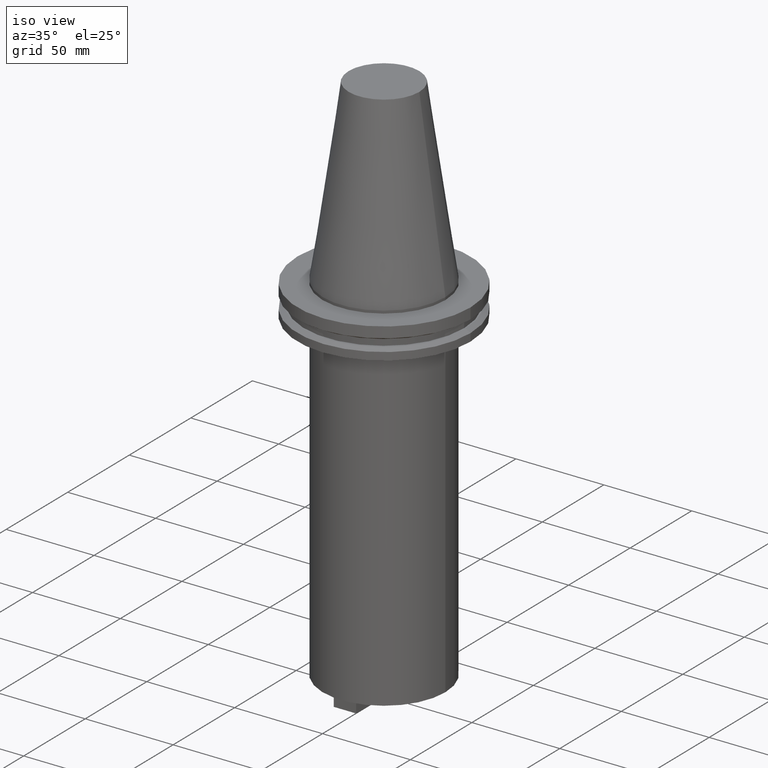
[diagram: clean part render]
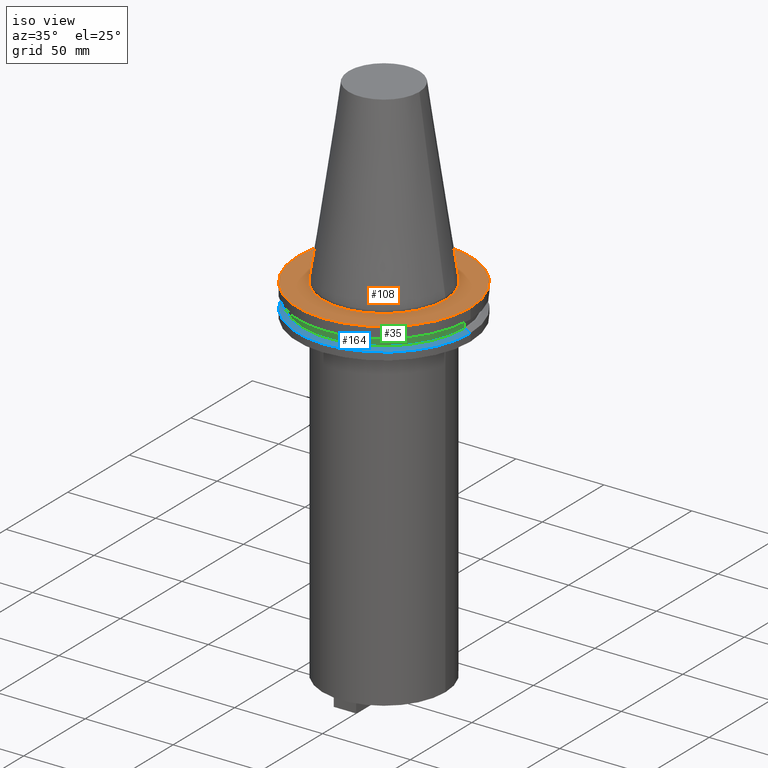
[diagram: same view with three faces highlighted in distinct colors, each labeled with its STEP entity id]
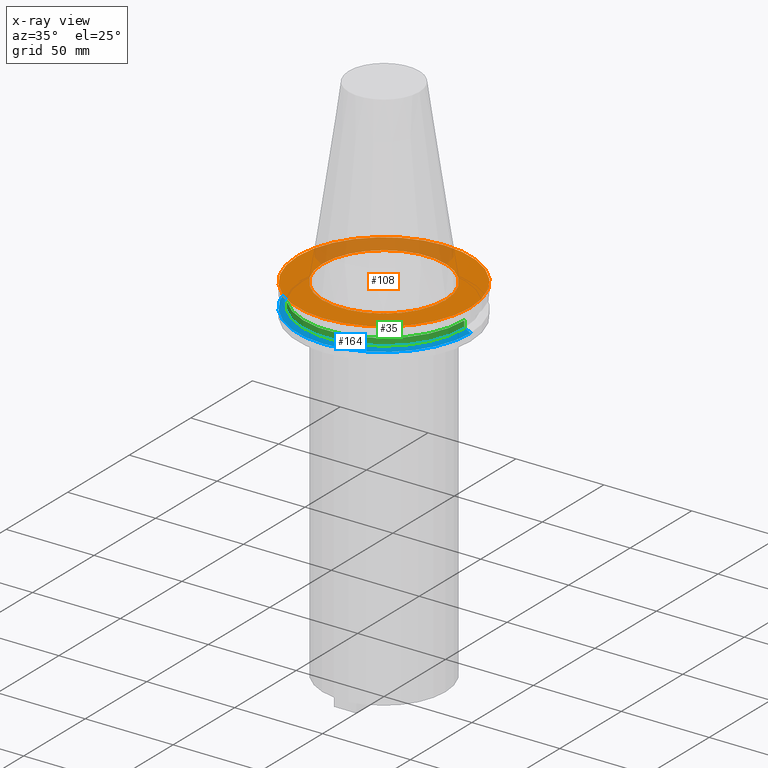
[diagram: x-ray of the same camera — body ghosted, the three highlighted faces saturated]
A machine part, iso view with three faces highlighted in distinct colors.
The next image is the same camera in x-ray (body ghosted, the three faces saturated) — at least one of them is partly hidden behind the body in this view.
Their STEP definitions:

[orange] entity #108 — the highlighted planar face has unit normal (0, 0, -1).
#16 = VERTEX_POINT ( 'NONE', #131 ) ;
#64 = DIRECTION ( 'NONE',  ( -0.000000000000000000, -0.000000000000000000, 1.000000000000000000 ) ) ;
#89 = CIRCLE ( 'NONE', #873, 49.21499999999999631 ) ;
#108 = ADVANCED_FACE ( 'NONE', ( #658, #213 ), #423, .F. ) ;
#123 = EDGE_LOOP ( 'NONE', ( #607, #599 ) ) ;
#131 = CARTESIAN_POINT ( 'NONE',  ( 49.21499999999999631, 0.000000000000000000, -1.499999999999987566 ) ) ;
#142 = CARTESIAN_POINT ( 'NONE',  ( 0.000000000000000000, 0.000000000000000000, -1.499999999999987566 ) ) ;
#143 = EDGE_CURVE ( 'NONE', #16, #890, #89, .T. ) ;
#152 = CIRCLE ( 'NONE', #202, 49.21499999999999631 ) ;
#168 = CIRCLE ( 'NONE', #689, 34.92499999999999005 ) ;
#193 = VERTEX_POINT ( 'NONE', #850 ) ;
#202 = AXIS2_PLACEMENT_3D ( 'NONE', #919, #940, #701 ) ;
#213 = FACE_OUTER_BOUND ( 'NONE', #123, .T. ) ;
#225 = DIRECTION ( 'NONE',  ( 1.000000000000000000, 0.000000000000000000, 0.000000000000000000 ) ) ;
#245 = ORIENTED_EDGE ( 'NONE', *, *, #583, .F. ) ;
#250 = EDGE_CURVE ( 'NONE', #890, #16, #152, .T. ) ;
#271 = CARTESIAN_POINT ( 'NONE',  ( 0.000000000000000000, 49.21499999999999631, -1.499999999999992895 ) ) ;
#278 = AXIS2_PLACEMENT_3D ( 'NONE', #844, #64, #225 ) ;
#299 = AXIS2_PLACEMENT_3D ( 'NONE', #271, #522, #839 ) ;
#421 = DIRECTION ( 'NONE',  ( -0.000000000000000000, -0.000000000000000000, 1.000000000000000000 ) ) ;
#423 = PLANE ( 'NONE',  #299 ) ;
#431 = CARTESIAN_POINT ( 'NONE',  ( 0.000000000000000000, 0.000000000000000000, -1.499999999999987566 ) ) ;
#522 = DIRECTION ( 'NONE',  ( 0.000000000000000000, 0.000000000000000000, -1.000000000000000000 ) ) ;
#534 = ORIENTED_EDGE ( 'NONE', *, *, #879, .F. ) ;
#549 = DIRECTION ( 'NONE',  ( -0.000000000000000000, -0.000000000000000000, 1.000000000000000000 ) ) ;
#569 = DIRECTION ( 'NONE',  ( 1.000000000000000000, 0.000000000000000000, 0.000000000000000000 ) ) ;
#583 = EDGE_CURVE ( 'NONE', #637, #193, #721, .T. ) ;
#599 = ORIENTED_EDGE ( 'NONE', *, *, #250, .T. ) ;
#605 = CARTESIAN_POINT ( 'NONE',  ( 34.92499999999999005, 0.000000000000000000, -1.499999999999987566 ) ) ;
#607 = ORIENTED_EDGE ( 'NONE', *, *, #143, .T. ) ;
#637 = VERTEX_POINT ( 'NONE', #605 ) ;
#658 = FACE_BOUND ( 'NONE', #1000, .T. ) ;
#689 = AXIS2_PLACEMENT_3D ( 'NONE', #431, #421, #569 ) ;
#701 = DIRECTION ( 'NONE',  ( 1.000000000000000000, 0.000000000000000000, 0.000000000000000000 ) ) ;
#721 = CIRCLE ( 'NONE', #278, 34.92499999999999005 ) ;
#767 = DIRECTION ( 'NONE',  ( 1.000000000000000000, 0.000000000000000000, 0.000000000000000000 ) ) ;
#816 = CARTESIAN_POINT ( 'NONE',  ( -49.21499999999999631, 6.027099222003697826E-15, -1.499999999999987566 ) ) ;
#839 = DIRECTION ( 'NONE',  ( -1.000000000000000000, 0.000000000000000000, -0.000000000000000000 ) ) ;
#844 = CARTESIAN_POINT ( 'NONE',  ( 0.000000000000000000, 0.000000000000000000, -1.499999999999987566 ) ) ;
#850 = CARTESIAN_POINT ( 'NONE',  ( -34.92499999999999005, 4.277078946022130098E-15, -1.499999999999987566 ) ) ;
#873 = AXIS2_PLACEMENT_3D ( 'NONE', #142, #549, #767 ) ;
#879 = EDGE_CURVE ( 'NONE', #193, #637, #168, .T. ) ;
#890 = VERTEX_POINT ( 'NONE', #816 ) ;
#919 = CARTESIAN_POINT ( 'NONE',  ( 0.000000000000000000, 0.000000000000000000, -1.499999999999987566 ) ) ;
#940 = DIRECTION ( 'NONE',  ( -0.000000000000000000, -0.000000000000000000, 1.000000000000000000 ) ) ;
#1000 = EDGE_LOOP ( 'NONE', ( #245, #534 ) ) ;

[blue] entity #164 — the highlighted conical surface has half-angle 60 deg.
#2 = CARTESIAN_POINT ( 'NONE',  ( 0.000000000000000000, 0.000000000000000000, -14.65761014474876944 ) ) ;
#24 = CARTESIAN_POINT ( 'NONE',  ( 46.43919780457007818, 5.857130358318725715E-15, -13.05499999999999794 ) ) ;
#79 = EDGE_CURVE ( 'NONE', #905, #404, #282, .T. ) ;
#147 = DIRECTION ( 'NONE',  ( 1.000000000000000000, 0.000000000000000000, 0.000000000000000000 ) ) ;
#160 = EDGE_CURVE ( 'NONE', #390, #538, #778, .T. ) ;
#164 = ADVANCED_FACE ( 'NONE', ( #612 ), #186, .T. ) ;
#186 = CONICAL_SURFACE ( 'NONE', #691, 49.21499999999998920, 1.047197551196554333 ) ;
#192 = DIRECTION ( 'NONE',  ( -0.8660254037844169472, 0.000000000000000000, -0.5000000000000375255 ) ) ;
#231 = DIRECTION ( 'NONE',  ( 0.8660254037844169472, 1.060575238724880168E-16, -0.5000000000000375255 ) ) ;
#261 = EDGE_CURVE ( 'NONE', #404, #538, #611, .T. ) ;
#269 = CARTESIAN_POINT ( 'NONE',  ( -46.43919780457007818, 0.000000000000000000, -13.05499999999999794 ) ) ;
#282 = LINE ( 'NONE', #990, #938 ) ;
#303 = ORIENTED_EDGE ( 'NONE', *, *, #577, .F. ) ;
#383 = CARTESIAN_POINT ( 'NONE',  ( 0.000000000000000000, 0.000000000000000000, -13.05499999999999794 ) ) ;
#390 = VERTEX_POINT ( 'NONE', #24 ) ;
#404 = VERTEX_POINT ( 'NONE', #876 ) ;
#519 = EDGE_LOOP ( 'NONE', ( #667, #303, #957, #530 ) ) ;
#530 = ORIENTED_EDGE ( 'NONE', *, *, #261, .T. ) ;
#538 = VERTEX_POINT ( 'NONE', #833 ) ;
#544 = VECTOR ( 'NONE', #231, 1000.000000000000114 ) ;
#577 = EDGE_CURVE ( 'NONE', #905, #390, #983, .T. ) ;
#578 = AXIS2_PLACEMENT_3D ( 'NONE', #383, #1002, #620 ) ;
#611 = CIRCLE ( 'NONE', #777, 49.21499999999998920 ) ;
#612 = FACE_OUTER_BOUND ( 'NONE', #519, .T. ) ;
#617 = DIRECTION ( 'NONE',  ( 0.000000000000000000, 0.000000000000000000, -1.000000000000000000 ) ) ;
#620 = DIRECTION ( 'NONE',  ( 1.000000000000000000, 0.000000000000000000, 0.000000000000000000 ) ) ;
#667 = ORIENTED_EDGE ( 'NONE', *, *, #160, .F. ) ;
#680 = CARTESIAN_POINT ( 'NONE',  ( 49.21499999999998920, 6.027099222003697037E-15, -14.65761014474876944 ) ) ;
#685 = DIRECTION ( 'NONE',  ( -1.000000000000000000, 0.000000000000000000, 0.000000000000000000 ) ) ;
#691 = AXIS2_PLACEMENT_3D ( 'NONE', #2, #617, #685 ) ;
#777 = AXIS2_PLACEMENT_3D ( 'NONE', #853, #999, #147 ) ;
#778 = LINE ( 'NONE', #680, #544 ) ;
#833 = CARTESIAN_POINT ( 'NONE',  ( 49.21499999999998920, 0.000000000000000000, -14.65761014474876944 ) ) ;
#853 = CARTESIAN_POINT ( 'NONE',  ( 0.000000000000000000, 0.000000000000000000, -14.65761014474876944 ) ) ;
#876 = CARTESIAN_POINT ( 'NONE',  ( -49.21499999999998920, 6.027099222003697037E-15, -14.65761014474876944 ) ) ;
#905 = VERTEX_POINT ( 'NONE', #269 ) ;
#938 = VECTOR ( 'NONE', #192, 1000.000000000000114 ) ;
#957 = ORIENTED_EDGE ( 'NONE', *, *, #79, .T. ) ;
#983 = CIRCLE ( 'NONE', #578, 46.43919780457007818 ) ;
#990 = CARTESIAN_POINT ( 'NONE',  ( -49.21499999999998920, 0.000000000000000000, -14.65761014474876944 ) ) ;
#999 = DIRECTION ( 'NONE',  ( -0.000000000000000000, -0.000000000000000000, 1.000000000000000000 ) ) ;
#1002 = DIRECTION ( 'NONE',  ( -0.000000000000000000, -0.000000000000000000, 1.000000000000000000 ) ) ;

[green] entity #35 — the highlighted cylindrical surface (partial cylindrical patch) has radius 45.645 mm, axis along (-0, -0, 1).
#35 = ADVANCED_FACE ( 'NONE', ( #209 ), #438, .T. ) ;
#53 = EDGE_CURVE ( 'NONE', #793, #198, #627, .T. ) ;
#83 = VERTEX_POINT ( 'NONE', #834 ) ;
#178 = ORIENTED_EDGE ( 'NONE', *, *, #53, .F. ) ;
#180 = LINE ( 'NONE', #408, #511 ) ;
#197 = CARTESIAN_POINT ( 'NONE',  ( 0.000000000000000000, 0.000000000000000000, -9.204999999999991189 ) ) ;
#198 = VERTEX_POINT ( 'NONE', #929 ) ;
#209 = FACE_OUTER_BOUND ( 'NONE', #710, .T. ) ;
#224 = ORIENTED_EDGE ( 'NONE', *, *, #675, .T. ) ;
#267 = DIRECTION ( 'NONE',  ( 1.000000000000000000, 0.000000000000000000, 0.000000000000000000 ) ) ;
#320 = ORIENTED_EDGE ( 'NONE', *, *, #958, .T. ) ;
#341 = EDGE_CURVE ( 'NONE', #618, #793, #180, .T. ) ;
#408 = CARTESIAN_POINT ( 'NONE',  ( -45.64500000000000313, 5.589900314708094957E-15, 101.5999999999999943 ) ) ;
#435 = CARTESIAN_POINT ( 'NONE',  ( 45.64500000000000313, 0.000000000000000000, 101.5999999999999943 ) ) ;
#438 = CYLINDRICAL_SURFACE ( 'NONE', #792, 45.64500000000000313 ) ;
#511 = VECTOR ( 'NONE', #720, 1000.000000000000000 ) ;
#528 = AXIS2_PLACEMENT_3D ( 'NONE', #197, #754, #267 ) ;
#572 = CIRCLE ( 'NONE', #860, 45.64500000000000313 ) ;
#590 = DIRECTION ( 'NONE',  ( -0.000000000000000000, -0.000000000000000000, 1.000000000000000000 ) ) ;
#618 = VERTEX_POINT ( 'NONE', #759 ) ;
#627 = CIRCLE ( 'NONE', #528, 45.64500000000000313 ) ;
#638 = CARTESIAN_POINT ( 'NONE',  ( -45.64500000000000313, 5.589900314708094957E-15, -9.204999999999991189 ) ) ;
#675 = EDGE_CURVE ( 'NONE', #618, #83, #572, .T. ) ;
#710 = EDGE_LOOP ( 'NONE', ( #773, #224, #320, #178 ) ) ;
#720 = DIRECTION ( 'NONE',  ( -0.000000000000000000, -0.000000000000000000, 1.000000000000000000 ) ) ;
#736 = LINE ( 'NONE', #435, #756 ) ;
#754 = DIRECTION ( 'NONE',  ( -0.000000000000000000, -0.000000000000000000, 1.000000000000000000 ) ) ;
#756 = VECTOR ( 'NONE', #821, 1000.000000000000000 ) ;
#759 = CARTESIAN_POINT ( 'NONE',  ( -45.64500000000000313, 5.589900314708094957E-15, -13.05499999999999794 ) ) ;
#766 = DIRECTION ( 'NONE',  ( 1.000000000000000000, 0.000000000000000000, 0.000000000000000000 ) ) ;
#773 = ORIENTED_EDGE ( 'NONE', *, *, #341, .F. ) ;
#792 = AXIS2_PLACEMENT_3D ( 'NONE', #977, #590, #898 ) ;
#793 = VERTEX_POINT ( 'NONE', #638 ) ;
#821 = DIRECTION ( 'NONE',  ( -0.000000000000000000, -0.000000000000000000, 1.000000000000000000 ) ) ;
#834 = CARTESIAN_POINT ( 'NONE',  ( 45.64500000000000313, 0.000000000000000000, -13.05499999999999794 ) ) ;
#837 = DIRECTION ( 'NONE',  ( -0.000000000000000000, -0.000000000000000000, 1.000000000000000000 ) ) ;
#860 = AXIS2_PLACEMENT_3D ( 'NONE', #1006, #837, #766 ) ;
#898 = DIRECTION ( 'NONE',  ( 1.000000000000000000, 0.000000000000000000, 0.000000000000000000 ) ) ;
#929 = CARTESIAN_POINT ( 'NONE',  ( 45.64500000000000313, 0.000000000000000000, -9.204999999999991189 ) ) ;
#958 = EDGE_CURVE ( 'NONE', #83, #198, #736, .T. ) ;
#977 = CARTESIAN_POINT ( 'NONE',  ( 0.000000000000000000, 0.000000000000000000, 101.5999999999999943 ) ) ;
#1006 = CARTESIAN_POINT ( 'NONE',  ( 0.000000000000000000, 0.000000000000000000, -13.05499999999999794 ) ) ;